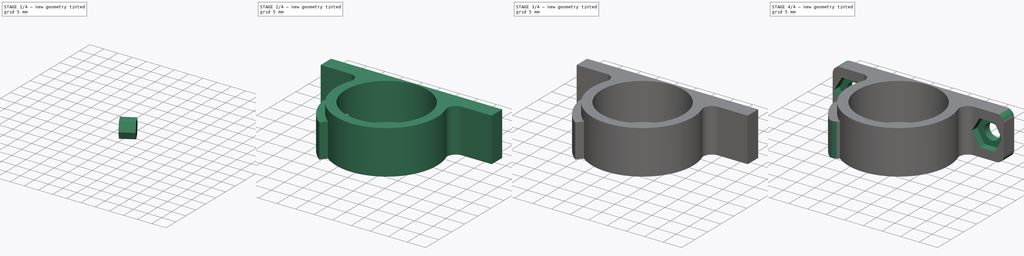
[diagram: build sequence overview — one tinted view per stage of 4, left to right]
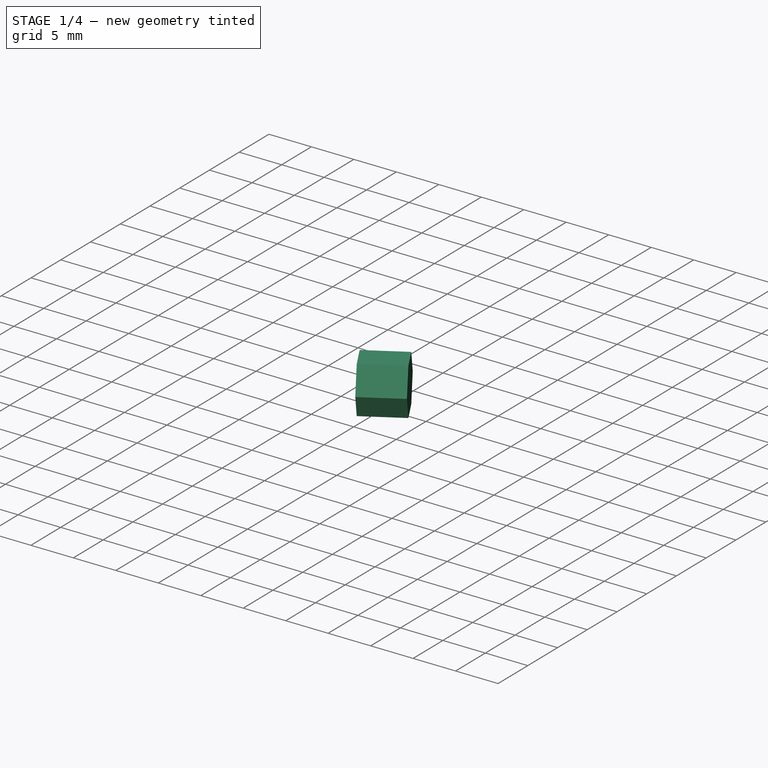
[diagram: stage 1 of 4 — iso view after this stage's code; geometry added in this stage tinted green]
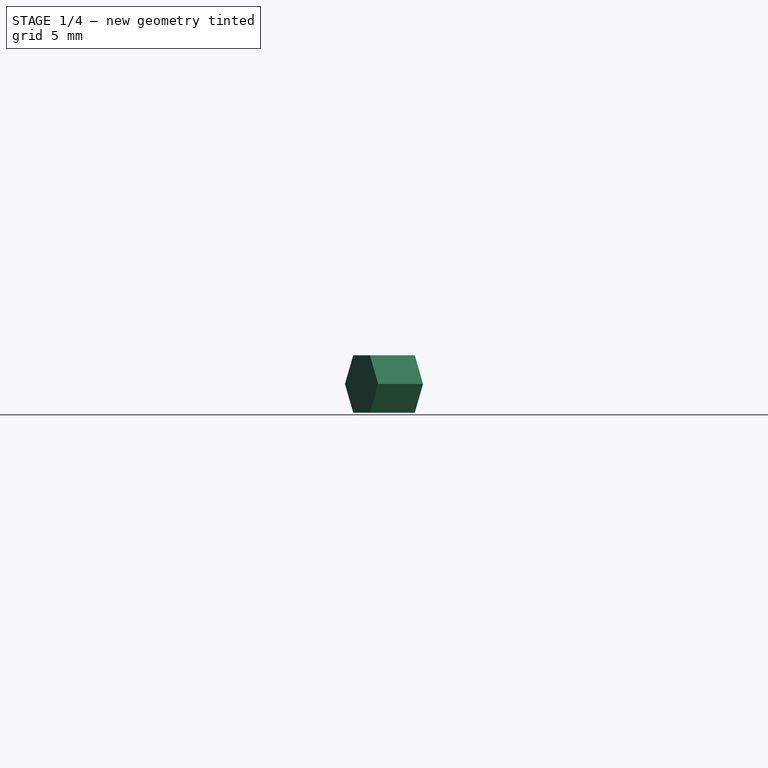
[diagram: stage 1 of 4 — front view after this stage's code; geometry added in this stage tinted green]
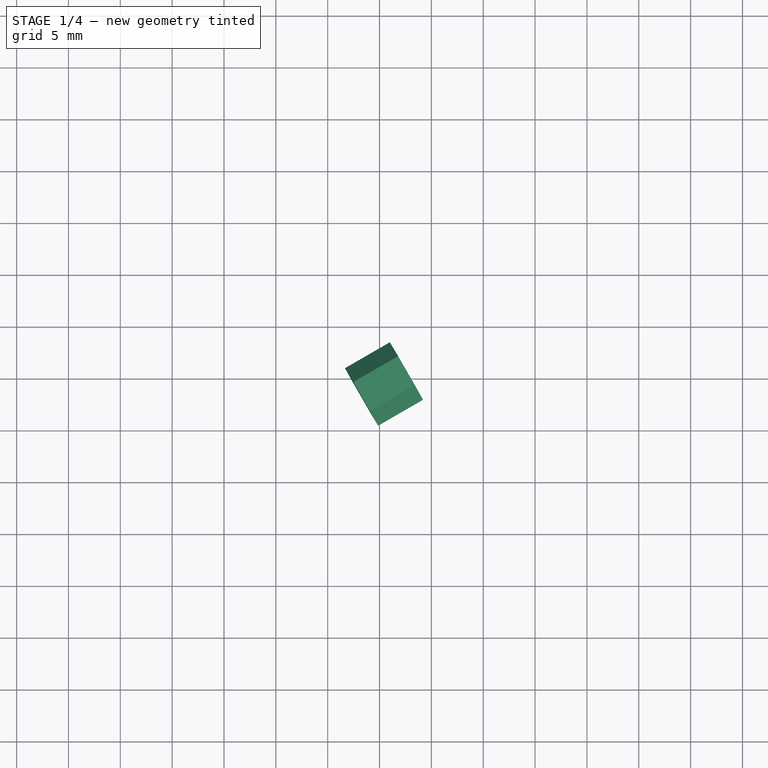
[diagram: stage 1 of 4 — top view after this stage's code; geometry added in this stage tinted green]
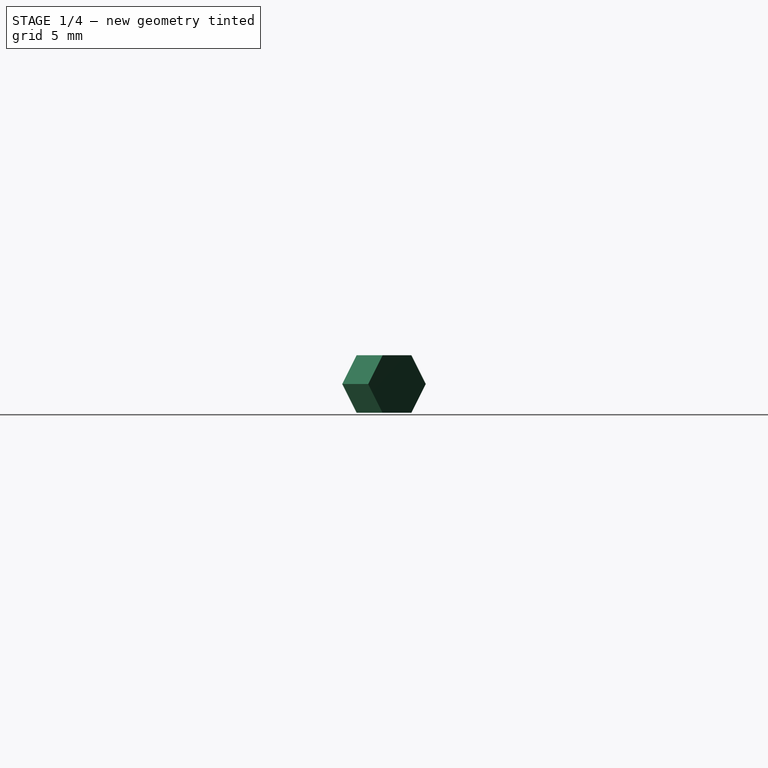
[diagram: stage 1 of 4 — right view after this stage's code; geometry added in this stage tinted green]
FCSTD DOCUMENT  (FreeCAD 0.15R4671 (Git))
Label: Halterung Trapezgewindemutter - v4
License: All rights reserved
LicenseURL: http://de.wikipedia.org/wiki/Alle_Rechte_vorbehalten
objects: Sketcher::SketchObject×10, PartDesign::Pocket×6, PartDesign::Pad×4, PartDesign::Fillet×2, Part::Fuse×1, Part::Cut×1
note: 34 computed .brp shape members not serialized (recipe doc carries the construction recipe); baked Part::Feature solids carry a one-line shape summary decoded from their .brp

FEATURE [Sketcher::SketchObject] Sketch004
  Placement = pos=(0,0,2.225) rot=(0,0,1;0rad)
  sketch-geometry (5):
    g0: LineSegment StartX=-11.1717 StartY=-2.75 StartZ=0 EndX=-7.96743 EndY=-8.3 EndZ=0
    g1: LineSegment [constr] StartX=0 StartY=0 StartZ=0 EndX=-9.56958 EndY=-5.525 EndZ=0
    g2: LineSegment StartX=-11.1717 StartY=-2.75 StartZ=0 EndX=-11.6047 EndY=-3 EndZ=0
    g3: LineSegment StartX=-11.6047 StartY=-3 StartZ=0 EndX=-8.40045 EndY=-8.55 EndZ=0
    g4: LineSegment StartX=-8.40045 StartY=-8.55 StartZ=0 EndX=-7.96743 EndY=-8.3 EndZ=0
  constraints (14):
    c: Distance(g0) = 6.40859
    c: Coincident(g1,g-1)
    c: PointOnObject(g1,g0)
    c: Angle(g-2,g1) = 2.0944
    c: Symmetric(g0,g0,g1)
    c: Coincident(g0,g2)
    c: Coincident(g2,g3)
    c: Coincident(g3,g4)
    c: Coincident(g4,g0)
    c: Perpendicular(g0,g4)
    c: Parallel(g4,g2)
    c: Parallel(g3,g0)
    c: Distance(g4) = 0.5
    c: Distance(g1) = 11.05
FEATURE [PartDesign::Pad] Pad002
  Length = 5.55
  Length2 = 100
  Placement = pos=(0,0,2.225) rot=(0,0,1;0rad)
  Sketch = -> Sketch004
  Type = 0
FEATURE [Sketcher::SketchObject] Sketch006
  ExternalGeometry = -> [Pad002]
  Placement = pos=(-9.56958,-5.525,2.225) rot=(0.377964,0.654654,0.654654;2.41886rad)
  Support = -> Pad002 [Face1]
  sketch-geometry (13):
    g0: LineSegment StartX=-3.2043 StartY=2.775 StartZ=0 EndX=-1.60215 EndY=5.55 EndZ=0
    g1: LineSegment StartX=-1.60215 StartY=5.55 StartZ=0 EndX=-3.2043 EndY=5.55 EndZ=0
    g2: LineSegment StartX=-3.2043 StartY=5.55 StartZ=0 EndX=-3.2043 EndY=2.775 EndZ=0
    g3: LineSegment [constr] StartX=1.60215 StartY=0 StartZ=0 EndX=3.2043 EndY=2.775 EndZ=0
    g4: LineSegment [constr] StartX=3.20429 StartY=2.775 StartZ=0 EndX=1.60215 EndY=5.55 EndZ=0
    g5: LineSegment [constr] StartX=1.60215 StartY=5.55 StartZ=0 EndX=-1.60215 EndY=5.55 EndZ=0
    g6: LineSegment [constr] StartX=-1.60215 StartY=5.55 StartZ=0 EndX=-3.2043 EndY=2.775 EndZ=0
    g7: LineSegment [constr] StartX=-3.2043 StartY=2.775 StartZ=0 EndX=-1.60215 EndY=0 EndZ=0
    g8: LineSegment [constr] StartX=-1.60215 StartY=0 StartZ=0 EndX=1.60215 EndY=0 EndZ=0
    g9: Circle [constr] CenterX=0 CenterY=2.775 CenterZ=0 NormalX=0 NormalY=0 NormalZ=1 Radius=3.2043
    g10: LineSegment StartX=1.60215 StartY=0 StartZ=0 EndX=3.2043 EndY=0 EndZ=0
    g11: LineSegment StartX=3.2043 StartY=0 StartZ=0 EndX=3.2043 EndY=2.775 EndZ=0
    g12: LineSegment StartX=3.2043 StartY=2.775 StartZ=0 EndX=1.60215 EndY=0 EndZ=0
  constraints (32):
    c: PointOnObject(g0,g-3)
    c: Coincident(g0,g1)
    c: Horizontal(g1)
    c: Coincident(g1,g2)
    c: Coincident(g2,g0)
    c: Coincident(g-3,g1)
    c: Angle(g0,g-3) = 0.523599
    c: Coincident(g4,g5)
    c: Coincident(g5,g6)
    c: Coincident(g6,g7)
    c: Coincident(g7,g8)
    c: Coincident(g8,g3)
    c: Equal(g3, g4-g8) x5
    c: PointOnObject(g4,g9)
    c: PointOnObject(g5,g9)
    c: PointOnObject(g6,g9)
    c: PointOnObject(g7,g9)
    c: PointOnObject(g8,g9)
    c: Horizontal(g8)
    c: PointOnObject(g9,g-2)
    c: PointOnObject(g4,g-4)
    c: PointOnObject(g-1,g8)
    c: Coincident(g0,g6)
    c: Coincident(g3,g10)
    c: Coincident(g12,g10)
    c: Coincident(g11,g12)
    c: Coincident(g10,g11)
    c: PointOnObject(g10,g-1)
    c: Vertical(g11)
    c: PointOnObject(g4,g9)
    c: PointOnObject(g3,g9)
    c: Coincident(g11,g3)
FEATURE [PartDesign::Pocket] Pocket001
  Length = 0.5
  Placement = pos=(0,0,2.225) rot=(0,0,1;0rad)
  Sketch = -> Sketch006
  Type = 0
FEATURE [Sketcher::SketchObject] Sketch008
  ExternalGeometry = -> [Pocket001]
  Placement = pos=(-9.56958,-5.525,2.225) rot=(0.377964,0.654654,0.654654;2.41886rad)
  Support = -> Pocket001 [Face1]
  sketch-geometry (13):
    g0: LineSegment [constr] StartX=1.60215 StartY=0 StartZ=0 EndX=3.2043 EndY=2.775 EndZ=0
    g1: LineSegment [constr] StartX=3.2043 StartY=2.775 StartZ=0 EndX=1.60215 EndY=5.55 EndZ=0
    g2: LineSegment [constr] StartX=1.60215 StartY=5.55 StartZ=0 EndX=-1.60215 EndY=5.55 EndZ=0
    g3: LineSegment [constr] StartX=-1.60215 StartY=5.55 StartZ=0 EndX=-3.2043 EndY=2.775 EndZ=0
    g4: LineSegment [constr] StartX=-3.2043 StartY=2.775 StartZ=0 EndX=-1.60215 EndY=0 EndZ=0
    g5: LineSegment [constr] StartX=-1.60215 StartY=0 StartZ=0 EndX=1.60215 EndY=0 EndZ=0
    g6: Circle [constr] CenterX=0 CenterY=2.775 CenterZ=0 NormalX=0 NormalY=0 NormalZ=1 Radius=3.2043
    g7: LineSegment StartX=1.60215 StartY=5.55 StartZ=0 EndX=3.2043 EndY=5.55 EndZ=0
    g8: LineSegment StartX=3.2043 StartY=5.55 StartZ=0 EndX=3.2043 EndY=2.775 EndZ=0
    g9: LineSegment StartX=3.2043 StartY=2.775 StartZ=0 EndX=1.60215 EndY=5.55 EndZ=0
    g10: LineSegment StartX=-1.60215 StartY=0 StartZ=0 EndX=-3.2043 EndY=0 EndZ=0
    g11: LineSegment StartX=-3.2043 StartY=0 StartZ=0 EndX=-3.2043 EndY=2.775 EndZ=0
    g12: LineSegment StartX=-3.2043 StartY=2.775 StartZ=0 EndX=-1.60215 EndY=0 EndZ=0
  constraints (30):
    c: Coincident(g0,g1)
    c: Coincident(g1,g2)
    c: Coincident(g2,g3)
    c: Coincident(g3,g4)
    c: Coincident(g4,g5)
    c: Coincident(g5,g0)
    c: Equal(g0, g1-g5) x5
    c: PointOnObject(g0,g6)
    c: PointOnObject(g1,g6)
    c: PointOnObject(g2,g6)
    c: PointOnObject(g3,g6)
    c: PointOnObject(g4,g6)
    c: PointOnObject(g5,g6)
    c: PointOnObject(g6,g-2)
    c: Horizontal(g5)
    c: Coincident(g0,g-3)
    c: Horizontal(g7)
    c: Coincident(g7,g8)
    c: Coincident(g8,g-3)
    c: Coincident(g8,g9)
    c: Coincident(g9,g7)
    c: Coincident(g1,g7)
    c: Vertical(g8)
    c: Coincident(g4,g10)
    c: Horizontal(g10)
    c: Coincident(g10,g11)
    c: Vertical(g11)
    c: Coincident(g11,g12)
    c: Coincident(g12,g10)
    c: Coincident(g3,g11)
FEATURE [PartDesign::Pocket] Pocket002
  Length = 0.5
  Placement = pos=(0,0,2.225) rot=(0,0,1;0rad)
  Sketch = -> Sketch008
  Type = 0
FEATURE [Sketcher::SketchObject] Sketch009
  ExternalGeometry = -> [Pocket002]
  Placement = pos=(-9.56958,-5.525,2.225) rot=(0.377964,0.654654,0.654654;2.41886rad)
  Support = -> Pocket002 [Face1]
  sketch-geometry (7):
    g0: LineSegment StartX=1.60215 StartY=-7.40537e-06 StartZ=0 EndX=3.2043 EndY=2.775 EndZ=0
    g1: LineSegment StartX=3.2043 StartY=2.775 StartZ=0 EndX=1.60215 EndY=5.55 EndZ=0
    g2: LineSegment StartX=1.60215 StartY=5.55 StartZ=0 EndX=-1.60215 EndY=5.55 EndZ=0
    g3: LineSegment StartX=-1.60215 StartY=5.55 StartZ=0 EndX=-3.2043 EndY=2.775 EndZ=0
    g4: LineSegment StartX=-3.2043 StartY=2.775 StartZ=0 EndX=-1.60215 EndY=-7.40537e-06 EndZ=0
    g5: LineSegment StartX=-1.60215 StartY=-7.40537e-06 StartZ=0 EndX=1.60215 EndY=-7.40537e-06 EndZ=0
    g6: Circle [constr] CenterX=0 CenterY=2.775 CenterZ=0 NormalX=0 NormalY=0 NormalZ=1 Radius=3.2043
  constraints (16):
    c: Coincident(g0,g1)
    c: Coincident(g1,g2)
    c: Coincident(g2,g3)
    c: Coincident(g3,g4)
    c: Coincident(g4,g5)
    c: Coincident(g5,g0)
    c: Equal(g0, g1-g5) x5
    c: PointOnObject(g0,g6)
    c: PointOnObject(g1,g6)
    c: PointOnObject(g2,g6)
    c: PointOnObject(g3,g6)
    c: PointOnObject(g4,g6)
    c: PointOnObject(g5,g6)
    c: PointOnObject(g6,g-2)
    c: Coincident(g-3,g2)
    c: Horizontal(g5)
FEATURE [PartDesign::Pad] Pad003
  Length = 5
  Length2 = 100
  Midplane = true
  Placement = pos=(0,0,2.225) rot=(0,0,1;0rad)
  Sketch = -> Sketch009
  Type = 0
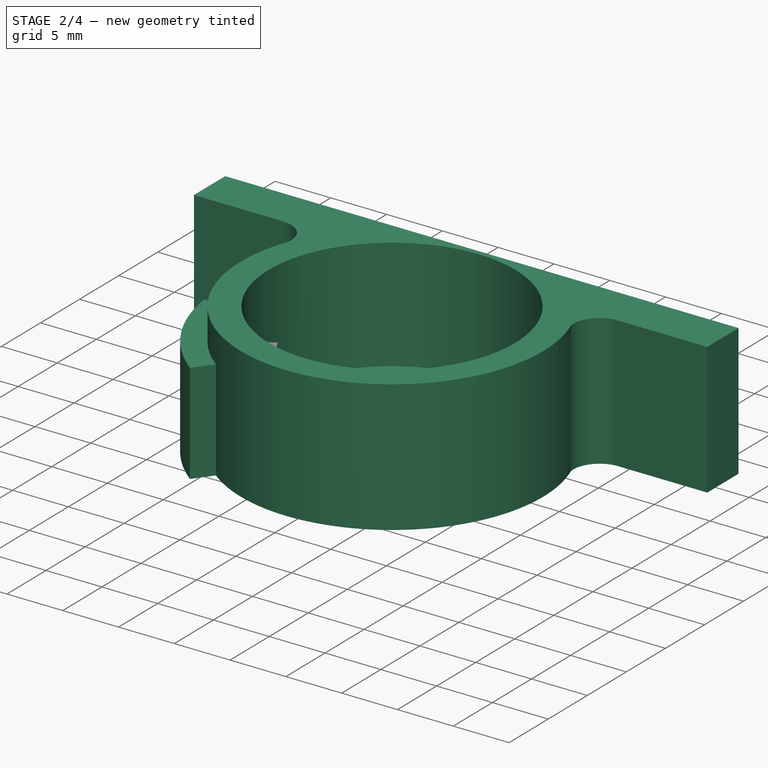
[diagram: stage 2 of 4 — iso view after this stage's code; geometry added in this stage tinted green]
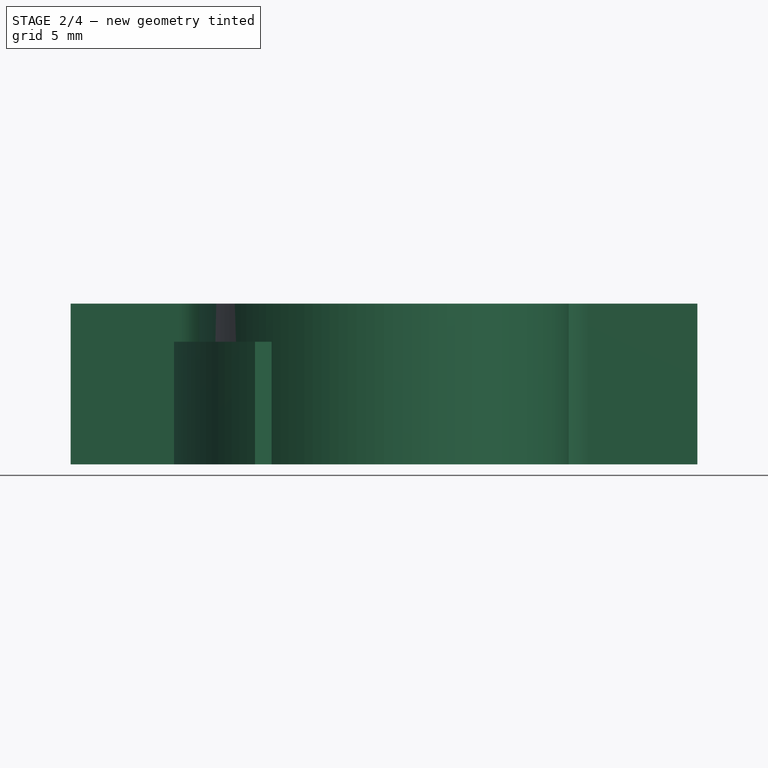
[diagram: stage 2 of 4 — front view after this stage's code; geometry added in this stage tinted green]
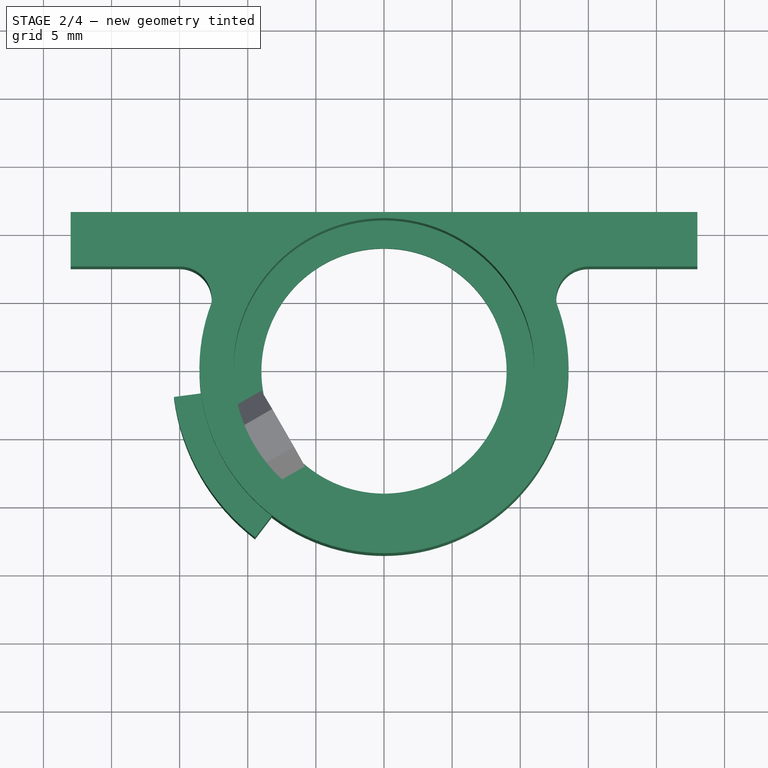
[diagram: stage 2 of 4 — top view after this stage's code; geometry added in this stage tinted green]
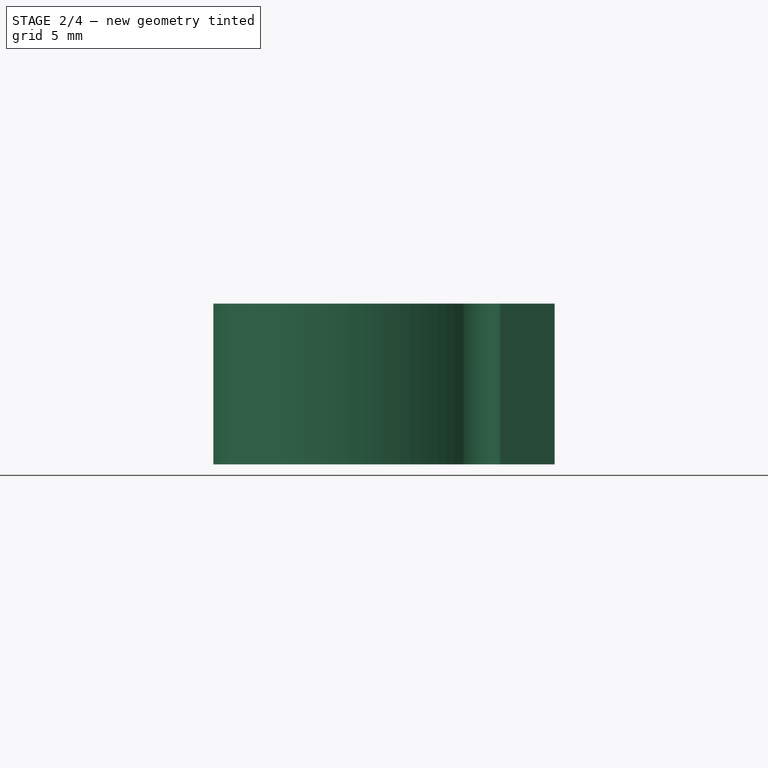
[diagram: stage 2 of 4 — right view after this stage's code; geometry added in this stage tinted green]
FEATURE [Sketcher::SketchObject] Sketch
  sketch-geometry (11):
    g0: Circle [constr] CenterX=0 CenterY=0 CenterZ=0 NormalX=0 NormalY=0 NormalZ=1 Radius=11.05
    g1: LineSegment StartX=-23 StartY=11.5 StartZ=0 EndX=23 EndY=11.5 EndZ=0
    g2: LineSegment StartX=23 StartY=11.5 StartZ=0 EndX=23 EndY=7.5 EndZ=0
    g3: LineSegment [constr] StartX=23 StartY=7.5 StartZ=0 EndX=-23 EndY=7.5 EndZ=0
    g4: LineSegment StartX=-23 StartY=7.5 StartZ=0 EndX=-23 EndY=11.5 EndZ=0
    g5: ArcOfCircle CenterX=-15 CenterY=5.1458 CenterZ=0 NormalX=0 NormalY=0 NormalZ=1 Radius=2.3542 StartAngle=6.13577 EndAngle=7.85398
    g6: ArcOfCircle CenterX=15 CenterY=5.1458 CenterZ=0 NormalX=0 NormalY=0 NormalZ=1 Radius=2.3542 StartAngle=1.57079 EndAngle=3.28901
    g7: ArcOfCircle CenterX=0 CenterY=0 CenterZ=0 NormalX=0 NormalY=0 NormalZ=1 Radius=13.55 StartAngle=2.77949 EndAngle=6.64529
    g8: LineSegment StartX=23 StartY=7.5 StartZ=0 EndX=15 EndY=7.5 EndZ=0
    g9: LineSegment StartX=-15 StartY=7.5 StartZ=0 EndX=-23 EndY=7.5 EndZ=0
    g10: Circle CenterX=0 CenterY=0 CenterZ=0 NormalX=0 NormalY=0 NormalZ=1 Radius=9
  constraints (32):
    c: Coincident(g0,g-1)
    c: Radius(g0) = 11.05
    c: Coincident(g1,g2)
    c: Coincident(g2,g3)
    c: Coincident(g3,g4)
    c: Coincident(g4,g1)
    c: Horizontal(g1)
    c: Horizontal(g3)
    c: Vertical(g2)
    c: Vertical(g4)
    c: Symmetric(g2,g3,g-2)
    c: DistanceY(g-1,g1) = 11.5
    c: PointOnObject(g5,g3)
    c: DistanceY(g4) = 4
    c: PointOnObject(g6,g3)
    c: Equal(g6,g5)
    c: Coincident(g7,g-1)
    c: Coincident(g7,g5)
    c: Coincident(g7,g6)
    c: Coincident(g8,g2)
    c: Coincident(g9,g5)
    c: Equal(g8,g9)
    c: Coincident(g8,g6)
    c: Coincident(g9,g3)
    c: Radius(g7) = 13.55
    c: DistanceY(g-1,g5) = 4.8
    c: Tangent(g5,g3)
    c: DistanceY(g-1,g6) = 4.8
    c: DistanceX(g2,g6) = -8
    c: DistanceX(g1) = 46
    c: Coincident(g10,g-1)
    c: Radius(g10) = 9
FEATURE [PartDesign::Pad] Pad
  Length = 11.8
  Length2 = 100
  Sketch = -> Sketch
  Type = 0
FEATURE [Sketcher::SketchObject] Sketch001
  Placement = pos=(0,0,11.8) rot=(0,0,1;0rad)
  Support = -> Pad [Face11]
  sketch-geometry (1):
    g0: Circle CenterX=0 CenterY=0 CenterZ=0 NormalX=0 NormalY=0 NormalZ=1 Radius=11.05
  constraints (2):
    c: Coincident(g0,g-1)
    c: Radius(g0) = 11.05
FEATURE [PartDesign::Pocket] Pocket
  Length = 10
  Sketch = -> Sketch001
  Type = 0
FEATURE [Sketcher::SketchObject] Sketch003
  sketch-geometry (7):
    g0: ArcOfCircle CenterX=0 CenterY=0 CenterZ=0 NormalX=0 NormalY=0 NormalZ=1 Radius=11.05 StartAngle=3.27249 EndAngle=4.05789
    g1: ArcOfCircle CenterX=0 CenterY=0 CenterZ=0 NormalX=0 NormalY=0 NormalZ=1 Radius=15.55 StartAngle=3.27249 EndAngle=4.05789
    g2: LineSegment StartX=-10.9555 StartY=-1.44231 StartZ=0 EndX=-15.417 EndY=-2.02968 EndZ=0
    g3: LineSegment [constr] StartX=0 StartY=0 StartZ=0 EndX=-10.9555 EndY=-1.44231 EndZ=0
    g4: LineSegment [constr] StartX=0 StartY=0 StartZ=0 EndX=-6.72681 EndY=-8.76655 EndZ=0
    g5: LineSegment StartX=-9.46624 StartY=-12.3366 StartZ=0 EndX=-6.72681 EndY=-8.76655 EndZ=0
    g6: LineSegment [constr] StartX=0 StartY=0 StartZ=0 EndX=-9.56958 EndY=-5.525 EndZ=0
  constraints (19):
    c: Coincident(g0,g-1)
    c: Radius(g0) = 11.05
    c: Coincident(g1,g-1)
    c: Coincident(g2,g0)
    c: Coincident(g2,g1)
    c: Coincident(g3,g-1)
    c: Coincident(g3,g0)
    c: Coincident(g4,g-1)
    c: Coincident(g0,g4)
    c: Parallel(g2,g3)
    c: Coincident(g5,g0)
    c: Coincident(g1,g5)
    c: Parallel(g5,g4)
    c: Distance(g5) = 4.5
    c: Angle(g3,g4) = 0.785398
    c: Coincident(g6,g-1)
    c: PointOnObject(g6,g0)
    c: Angle(g-2,g6) = 2.0944
    c: Angle(g6,g4) = 0.392699
FEATURE [PartDesign::Pad] Pad001
  Length = 9
  Length2 = 100
  Sketch = -> Sketch003
  Type = 0
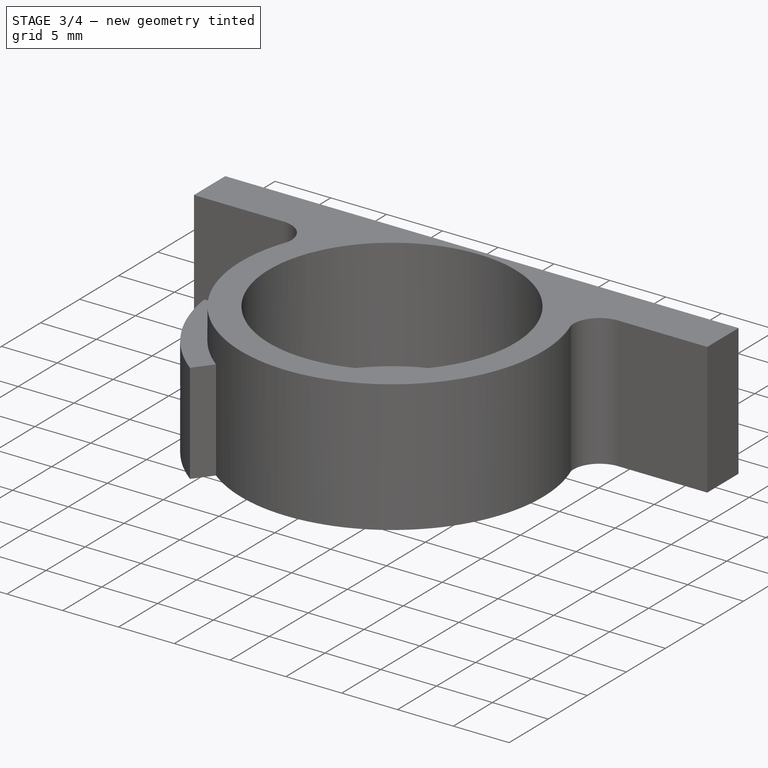
[diagram: stage 3 of 4 — iso view after this stage's code; geometry added in this stage tinted green]
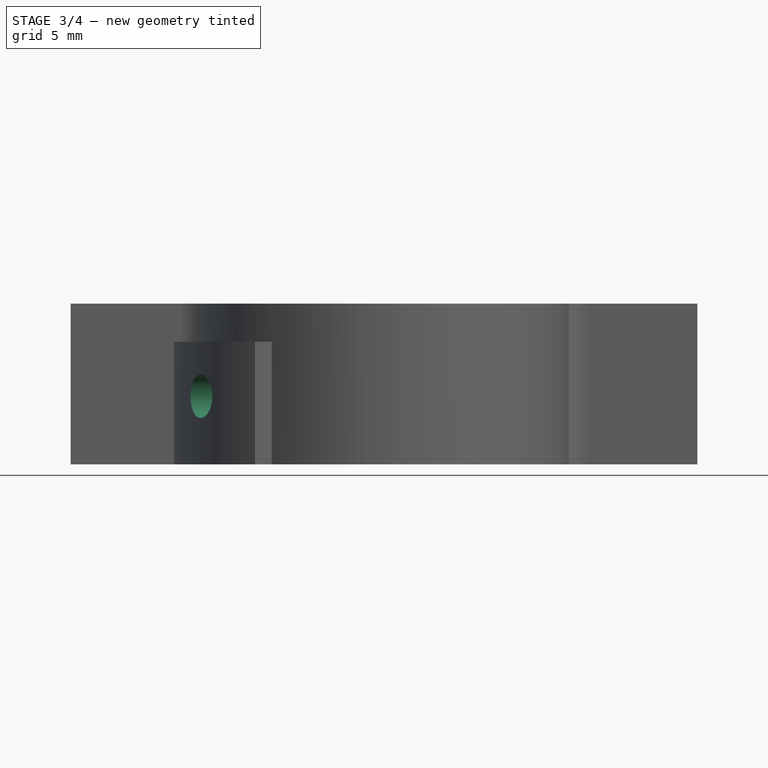
[diagram: stage 3 of 4 — front view after this stage's code; geometry added in this stage tinted green]
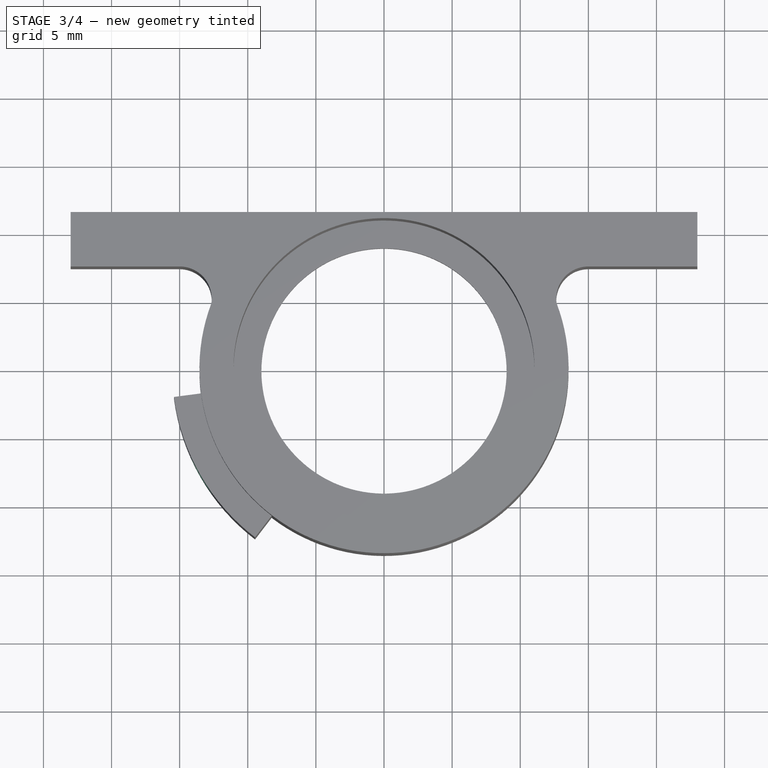
[diagram: stage 3 of 4 — top view after this stage's code; geometry added in this stage tinted green]
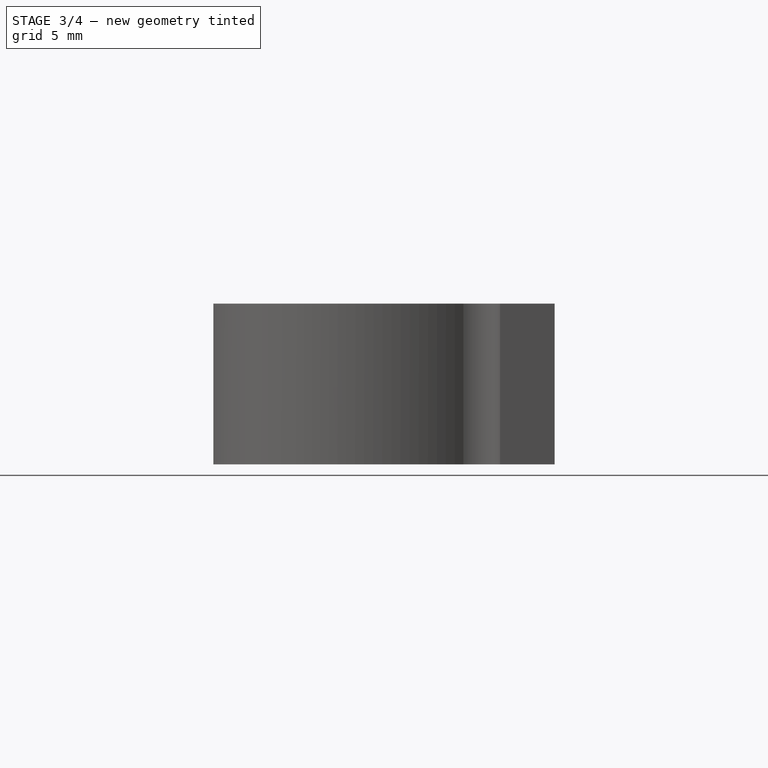
[diagram: stage 3 of 4 — right view after this stage's code; geometry added in this stage tinted green]
FEATURE [Part::Fuse] Fusion
  Base = -> Pocket
  Tool = -> Pad001
FEATURE [Part::Cut] Cut
  Base = -> Fusion
  Tool = -> Pad003
FEATURE [Sketcher::SketchObject] Sketch010
  ExternalGeometry = -> [Cut]
  Placement = pos=(-11.7346,-6.775,0) rot=(0.377964,0.654654,0.654654;2.41886rad)
  Support = -> Cut [Face28]
  sketch-geometry (2):
    g0: LineSegment [constr] StartX=-1.60215 StartY=7.775 StartZ=0 EndX=1.60215 EndY=2.22499 EndZ=0
    g1: Circle CenterX=0 CenterY=5 CenterZ=0 NormalX=0 NormalY=0 NormalZ=1 Radius=1.6
  constraints (5):
    c: Coincident(g0,g-4)
    c: Coincident(g0,g-3)
    c: PointOnObject(g1,g0)
    c: PointOnObject(g1,g-2)
    c: Radius(g1) = 1.6
FEATURE [PartDesign::Pocket] Pocket003
  Length = 5
  Sketch = -> Sketch010
  Type = 0
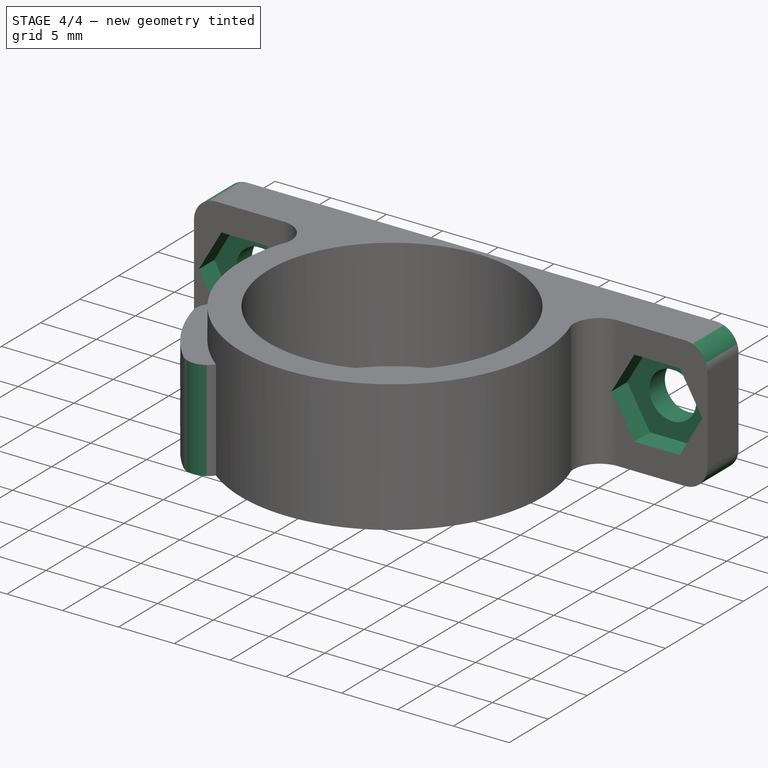
[diagram: stage 4 of 4 — iso view after this stage's code; geometry added in this stage tinted green]
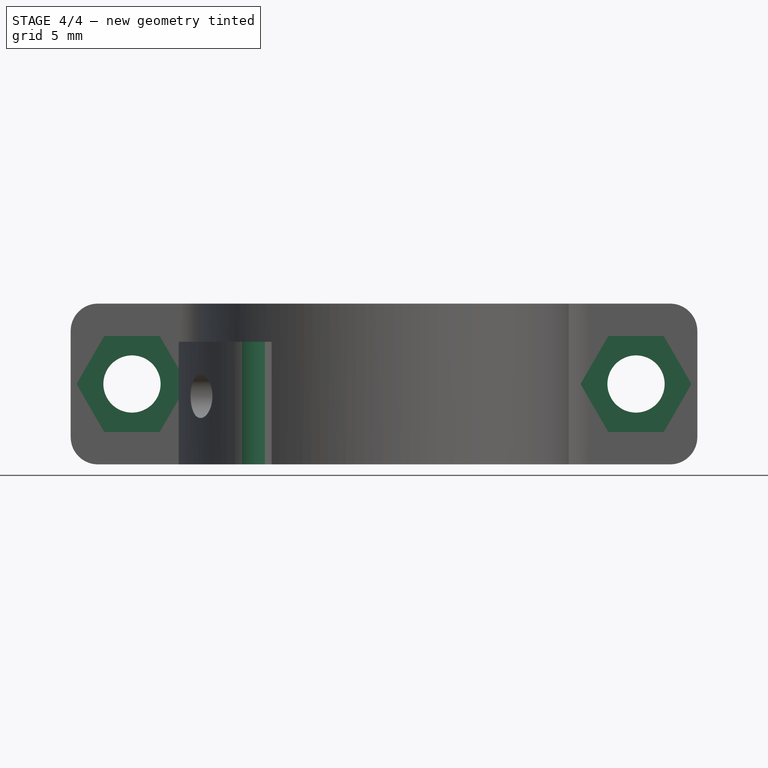
[diagram: stage 4 of 4 — front view after this stage's code; geometry added in this stage tinted green]
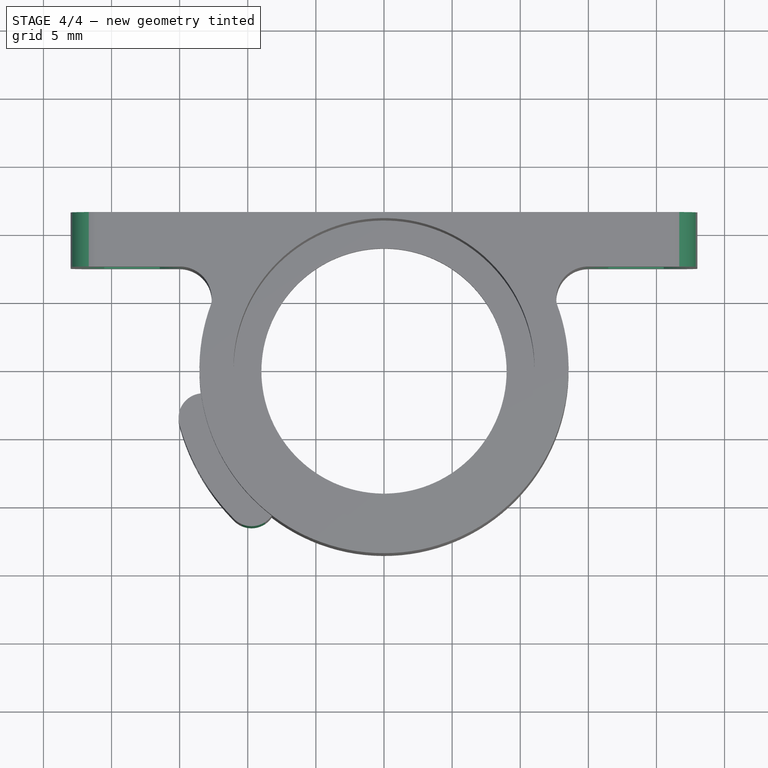
[diagram: stage 4 of 4 — top view after this stage's code; geometry added in this stage tinted green]
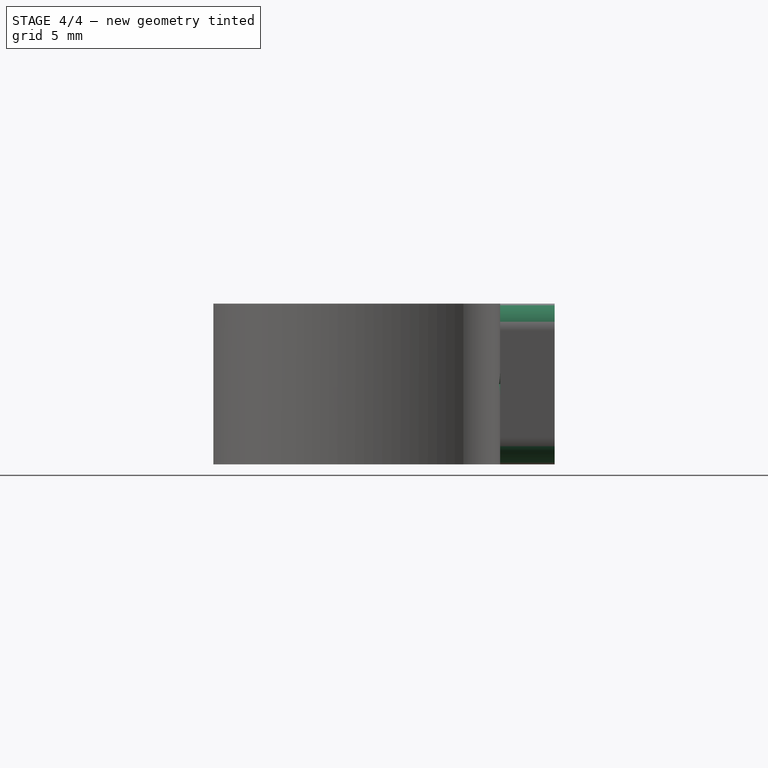
[diagram: stage 4 of 4 — right view after this stage's code; geometry added in this stage tinted green]
FEATURE [PartDesign::Fillet] Fillet
  Base = -> Pocket003 [Edge31,Edge36]
  Radius = 1.8
FEATURE [Sketcher::SketchObject] Sketch011
  ExternalGeometry = -> [Fillet]
  Placement = pos=(2e-12,7.5,0) rot=(1,0,0;1.5708rad)
  Support = -> Fillet [Face19]
  sketch-geometry (3):
    g0: LineSegment [constr] StartX=-23 StartY=5.9 StartZ=0 EndX=-15 EndY=5.9 EndZ=0
    g1: Circle CenterX=-18.5 CenterY=5.9 CenterZ=0 NormalX=0 NormalY=0 NormalZ=1 Radius=2.1
    g2: Circle CenterX=18.5 CenterY=5.9 CenterZ=0 NormalX=0 NormalY=0 NormalZ=1 Radius=2.1
  constraints (9):
    c: PointOnObject(g0,g-3)
    c: PointOnObject(g0,g-4)
    c: Horizontal(g0)
    c: Symmetric(g-3,g-3,g0)
    c: PointOnObject(g1,g0)
    c: Symmetric(g2,g1,g-2)
    c: DistanceX(g1,g2) = 37
    c: Radius(g1) = 2.1
    c: Equal(g1,g2)
FEATURE [PartDesign::Pocket] Pocket004
  Length = 5
  Sketch = -> Sketch011
  Type = 0
FEATURE [Sketcher::SketchObject] Sketch012
  ExternalGeometry = -> [Pocket004]
  Placement = pos=(2e-12,7.5,0) rot=(1,0,0;1.5708rad)
  Support = -> Pocket004 [Face19]
  sketch-geometry (14):
    g0: LineSegment StartX=-20.5352 StartY=2.375 StartZ=0 EndX=-16.4648 EndY=2.375 EndZ=0
    g1: LineSegment StartX=-16.4648 StartY=2.375 StartZ=0 EndX=-14.4297 EndY=5.9 EndZ=0
    g2: LineSegment StartX=-14.4297 StartY=5.9 StartZ=0 EndX=-16.4648 EndY=9.425 EndZ=0
    g3: LineSegment StartX=-16.4648 StartY=9.425 StartZ=0 EndX=-20.5352 EndY=9.425 EndZ=0
    g4: LineSegment StartX=-20.5352 StartY=9.425 StartZ=0 EndX=-22.5703 EndY=5.9 EndZ=0
    g5: LineSegment StartX=-22.5703 StartY=5.9 StartZ=0 EndX=-20.5352 EndY=2.375 EndZ=0
    g6: Circle [constr] CenterX=-18.5 CenterY=5.9 CenterZ=0 NormalX=0 NormalY=0 NormalZ=1 Radius=4.07032
    g7: LineSegment StartX=16.4648 StartY=2.375 StartZ=0 EndX=20.5352 EndY=2.375 EndZ=0
    g8: LineSegment StartX=20.5352 StartY=2.375 StartZ=0 EndX=22.5703 EndY=5.9 EndZ=0
    g9: LineSegment StartX=22.5703 StartY=5.9 StartZ=0 EndX=20.5352 EndY=9.425 EndZ=0
    g10: LineSegment StartX=20.5352 StartY=9.425 StartZ=0 EndX=16.4648 EndY=9.425 EndZ=0
    g11: LineSegment StartX=16.4648 StartY=9.425 StartZ=0 EndX=14.4297 EndY=5.9 EndZ=0
    g12: LineSegment StartX=14.4297 StartY=5.9 StartZ=0 EndX=16.4648 EndY=2.375 EndZ=0
    g13: Circle [constr] CenterX=18.5 CenterY=5.9 CenterZ=0 NormalX=0 NormalY=0 NormalZ=1 Radius=4.07032
  constraints (32):
    c: Coincident(g0,g1)
    c: Coincident(g1,g2)
    c: Coincident(g2,g3)
    c: Coincident(g3,g4)
    c: Coincident(g4,g5)
    c: Coincident(g5,g0)
    c: Equal(g0, g1-g5) x5
    c: PointOnObject(g0,g6)
    c: PointOnObject(g1,g6)
    c: PointOnObject(g2,g6)
    c: PointOnObject(g3,g6)
    c: PointOnObject(g4,g6)
    c: PointOnObject(g5,g6)
    c: Coincident(g7,g8)
    c: Coincident(g8,g9)
    c: Coincident(g9,g10)
    c: Coincident(g10,g11)
    c: Coincident(g11,g12)
    c: Coincident(g12,g7)
    c: Equal(g7, g8-g12) x5
    c: PointOnObject(g7,g13)
    c: PointOnObject(g8,g13)
    c: PointOnObject(g9,g13)
    c: PointOnObject(g10,g13)
    c: PointOnObject(g11,g13)
    c: PointOnObject(g12,g13)
    c: Coincident(g13,g-4)
    c: Coincident(g6,g-3)
    c: Equal(g6,g13)
    c: Distance(g0,g4) = 7.05
    c: Horizontal(g0)
    c: Horizontal(g7)
FEATURE [PartDesign::Pocket] Pocket005
  Length = 4
  Midplane = true
  Sketch = -> Sketch012
  Type = 0
FEATURE [PartDesign::Fillet] Fillet001
  Base = -> Pocket005 [Edge33,Edge44,Edge31,Edge47]
  Radius = 2
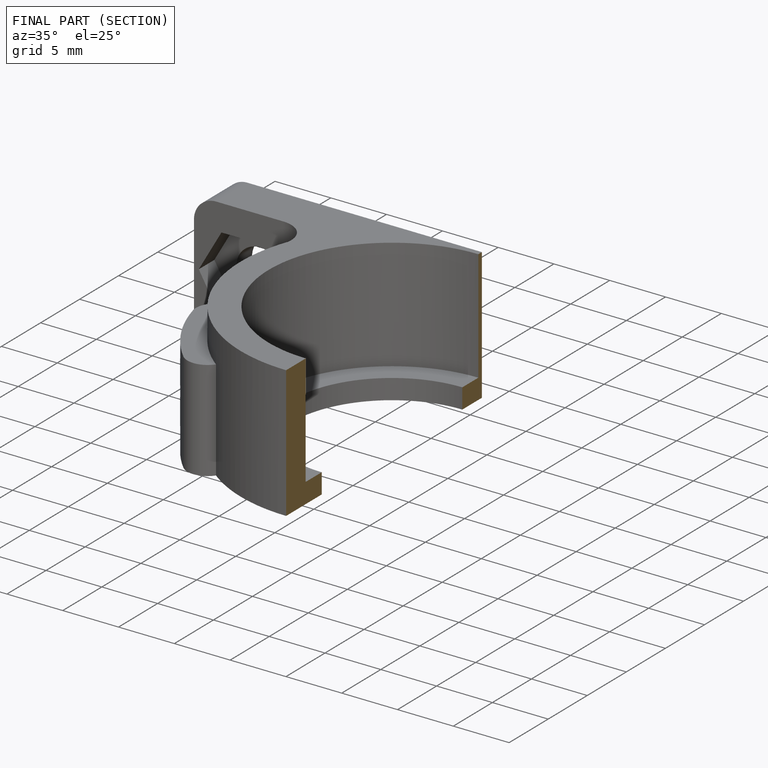
[diagram: finished part — half-section view (interior)]
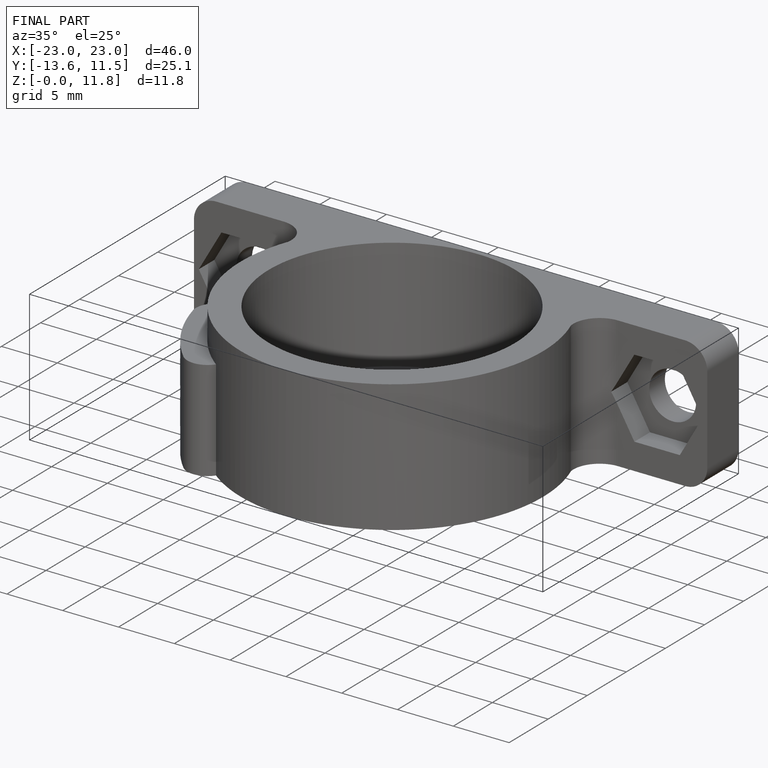
[diagram: finished part — iso view with bounding-box wireframe]
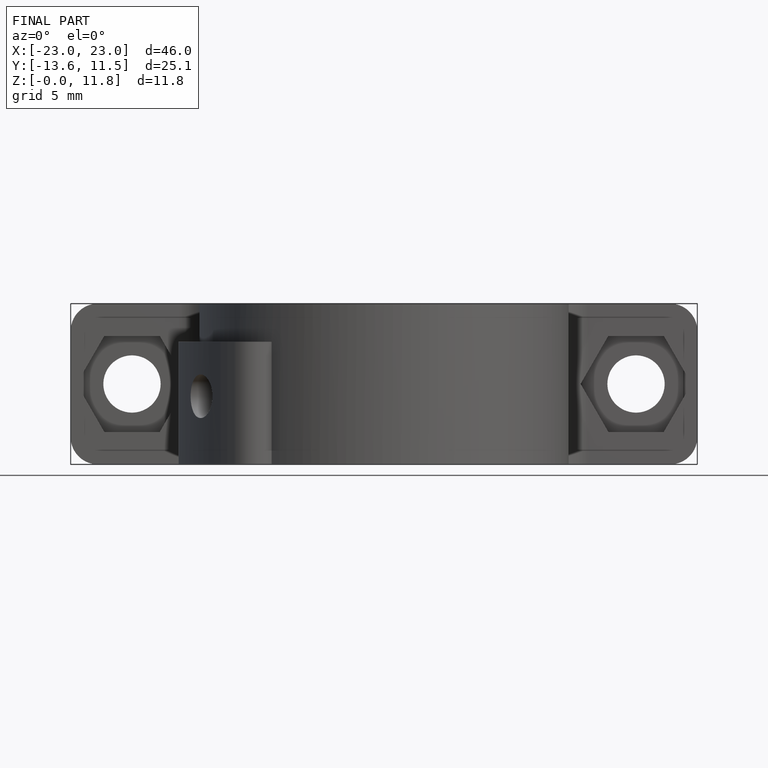
[diagram: finished part — front view with bounding-box wireframe]
